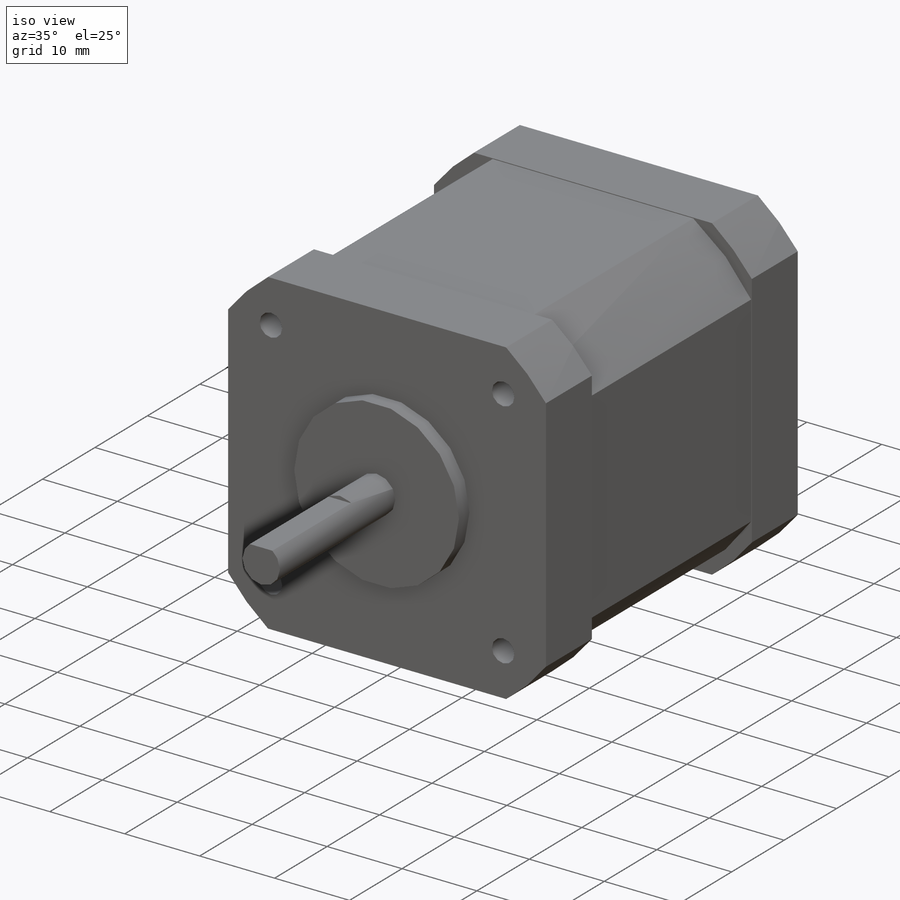
[diagram: iso view]
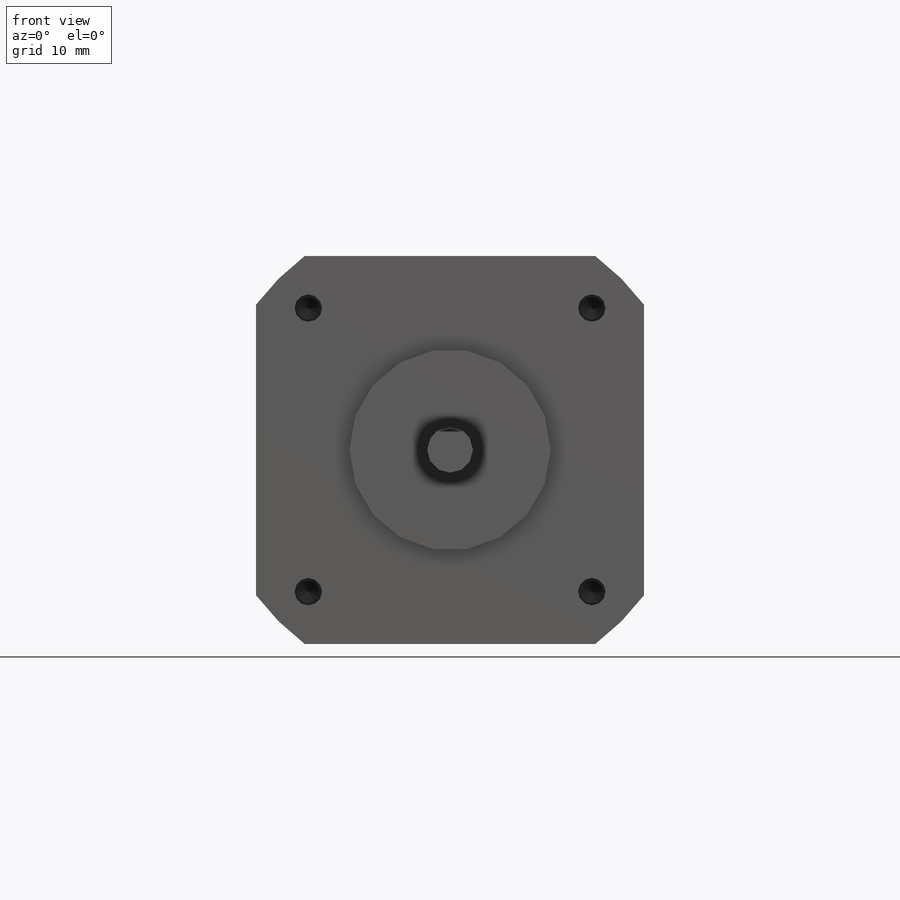
[diagram: front view]
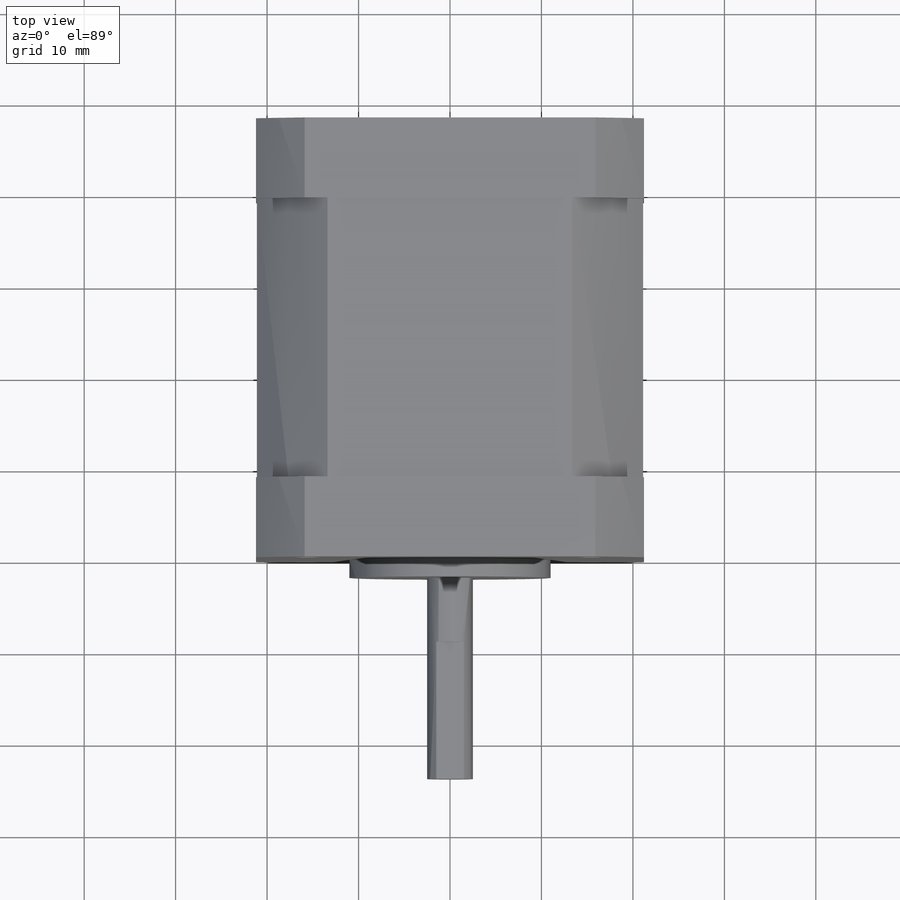
[diagram: top view]
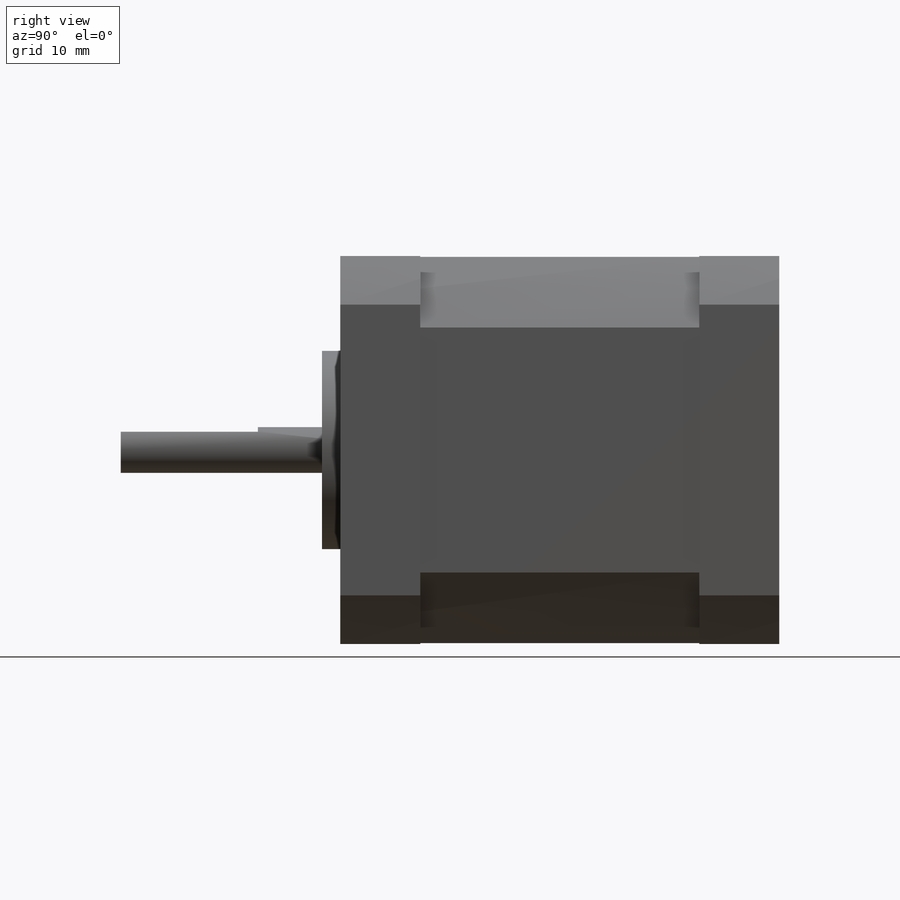
[diagram: right view]
SOLIDWORKS PART (.sldprt)
format: sldprt  version: not decoded by parser v0  size: 321,536 bytes
history: native  units: mm
features: sketch x8, extrude x3, cut_extrude x3, material x1, hole x1, plane x1 (+13 scaffold rows collapsed)
feature tree (30):
  scaffold x13  (default folders/planes/origin — collapsed)
  material  "Plain Carbon Steel"
  sketch  "Sketch1"  dims[D1=5.0mm]
  extrude  "Boss-Extrude1"  Depth=24mm
  sketch  "Sketch2"  dims[D1=22.0mm]
  extrude  "Boss-Extrude2"  Depth=2mm
  sketch  "Sketch3"  dims[D2=4.6mm D1=42.418mm]
  extrude  "Boss-Extrude3"  Depth=48mm
  sketch  "Sketch4"  dims[D2=26.5mm D1=0.0mm]
  cut_extrude  "Cut-Extrude1"  [1 undecoded]
  hole  "M3x0.5 Tapped Hole1"  Diameter=2.5mm Depth=7.5mm
  sketch  "Sketch6"  dims[D1=31.0mm D2=31.0mm]
  sketch  "Sketch5"  dims[hole-wizard template sketch: 29 standard entries collapsed; hole parameters kept: c8.Tap Drill Depth=7.5mm c8.Thread Major Dia.=3.0mm c8.Thread Depth=6.0mm c8.D5=~14.816244mm c8.Drill Angle=118.0deg]
  sketch  "Sketch7"  dims[D1=4.5mm]
  cut_extrude  "Cut-Extrude2"  Depth=15mm
  plane  "Plane1"  Offset=24mm
  sketch  "Sketch8"  dims[D1=50.0mm D2=0.1mm D3=0.1mm D4=0.0mm]
  cut_extrude  "Cut-Extrude3"  Depth=30.5mm
decode coverage: 14 of 15 modeling features carry decoded parameters
note: ~ marks probable driven/reference dimensions
note: 1 parameter value undecoded
note: suppression state not decoded; provenance and decode notes live in map.json
